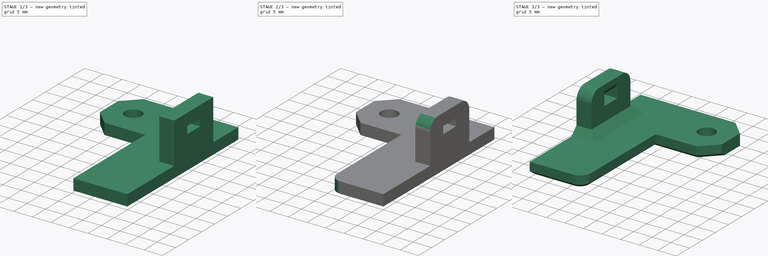
[diagram: build sequence overview — one tinted view per stage of 3, left to right]
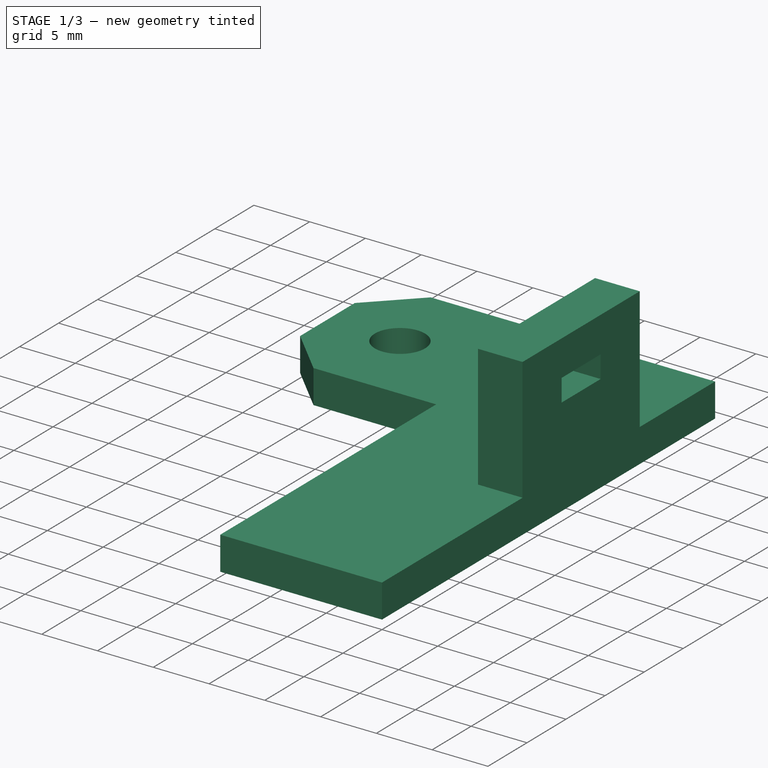
[diagram: stage 1 of 3 — iso view after this stage's code; geometry added in this stage tinted green]
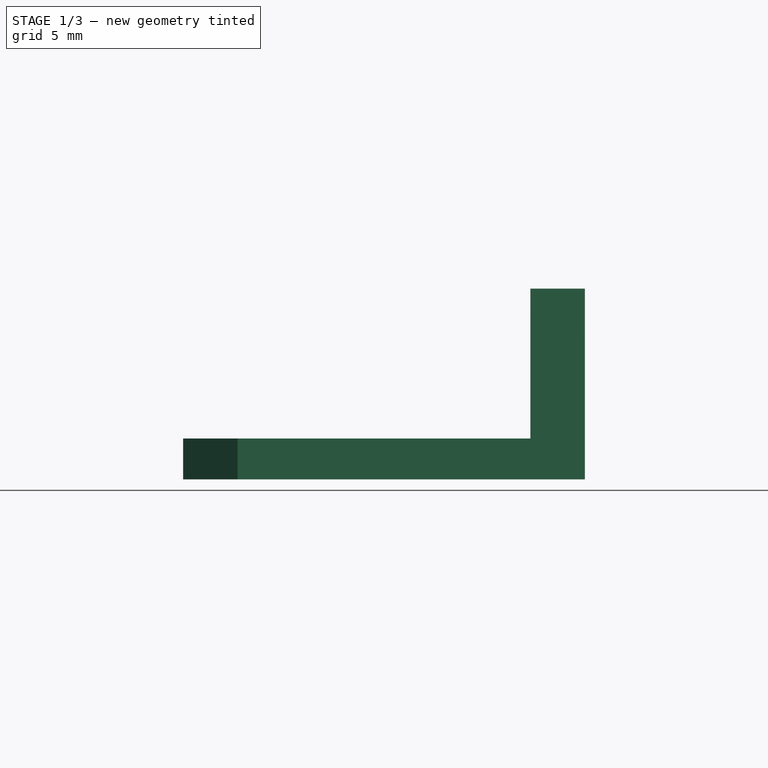
[diagram: stage 1 of 3 — front view after this stage's code; geometry added in this stage tinted green]
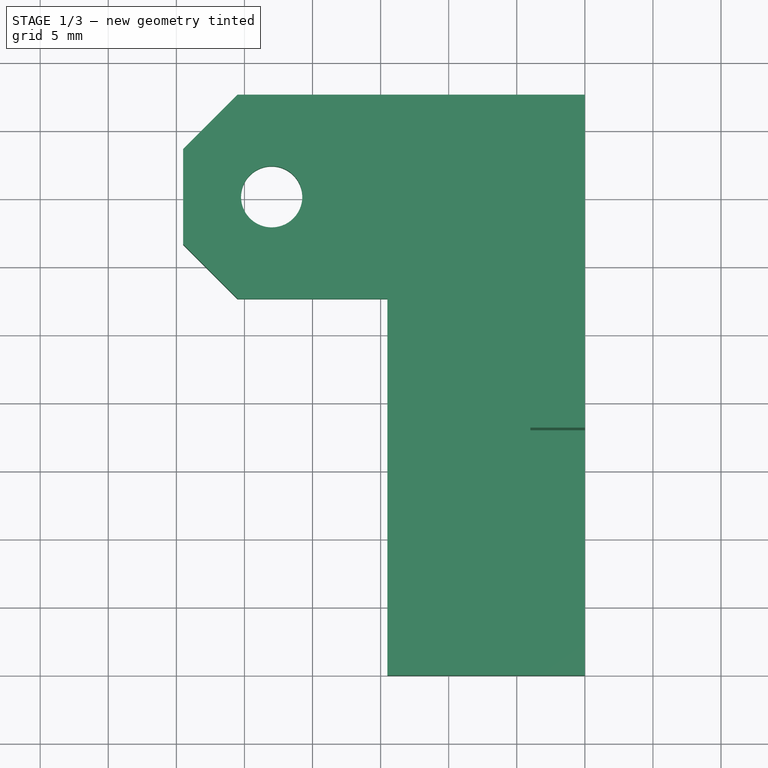
[diagram: stage 1 of 3 — top view after this stage's code; geometry added in this stage tinted green]
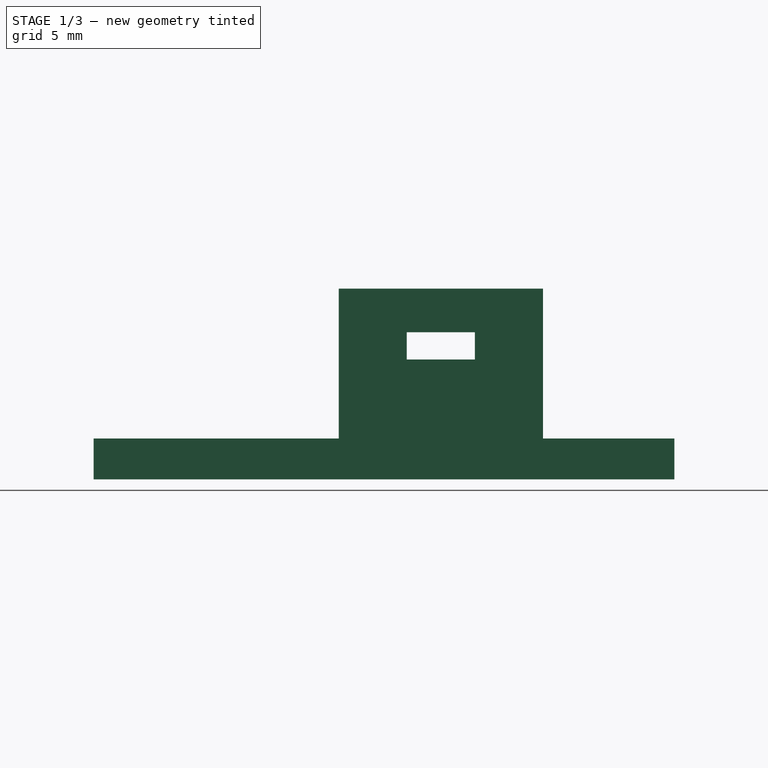
[diagram: stage 1 of 3 — right view after this stage's code; geometry added in this stage tinted green]
FCSTD DOCUMENT  (FreeCAD 0.16R6697 (Git))
Label: CNC Mount Halterung Laserdiode - Links
License: All rights reserved
LicenseURL: http://de.wikipedia.org/wiki/Alle_Rechte_vorbehalten
objects: Sketcher::SketchObject×3, PartDesign::Pad×2, PartDesign::Fillet×2, PartDesign::Chamfer×2, PartDesign::Pocket×1, Part::Mirroring×1
note: 14 computed .brp shape members not serialized (recipe doc carries the construction recipe); baked Part::Feature solids carry a one-line shape summary decoded from their .brp

FEATURE [Sketcher::SketchObject] Sketch
  sketch-geometry (11):
    g0: LineSegment StartX=0 StartY=42.65 StartZ=0 EndX=-25.5 EndY=42.65 EndZ=0
    g1: LineSegment StartX=-25.5 StartY=42.65 StartZ=0 EndX=-29.5 EndY=38.65 EndZ=0
    g2: LineSegment StartX=-29.5 StartY=38.65 StartZ=0 EndX=-29.5 EndY=31.65 EndZ=0
    g3: LineSegment StartX=-29.5 StartY=31.65 StartZ=0 EndX=-25.5 EndY=27.65 EndZ=0
    g4: LineSegment StartX=-25.5 StartY=27.65 StartZ=0 EndX=-14.5 EndY=27.65 EndZ=0
    g5: LineSegment StartX=-14.5 StartY=27.65 StartZ=0 EndX=-14.5 EndY=0 EndZ=0
    g6: LineSegment StartX=-14.5 StartY=0 StartZ=0 EndX=0 EndY=0 EndZ=0
    g7: LineSegment StartX=0 StartY=0 StartZ=0 EndX=0 EndY=42.65 EndZ=0
    g8: LineSegment [constr] StartX=-25.5 StartY=42.65 StartZ=0 EndX=-25.5 EndY=27.65 EndZ=0
    g9: LineSegment [constr] StartX=-29.5 StartY=35.15 StartZ=0 EndX=0 EndY=35.15 EndZ=0
    g10: Circle CenterX=-23 CenterY=35.15 CenterZ=0 NormalX=0 NormalY=0 NormalZ=1 Radius=2.25
  constraints (31):
    c: Horizontal(g0)
    c: Coincident(g0,g1)
    c: Coincident(g1,g2)
    c: Vertical(g2)
    c: Coincident(g2,g3)
    c: Coincident(g3,g4)
    c: Horizontal(g4)
    c: Coincident(g4,g5)
    c: Vertical(g5)
    c: Coincident(g5,g6)
    c: Horizontal(g6)
    c: Coincident(g6,g7)
    c: Coincident(g7,g0)
    c: Vertical(g7)
    c: Coincident(g6,g-1)
    c: DistanceX(g6,g6) = 14.5
    c: DistanceX(g0,g0) = 25.5
    c: DistanceX(g1,g0) = 29.5
    c: DistanceY(g7,g7) = 42.65
    c: Coincident(g8,g0)
    c: Coincident(g8,g3)
    c: Vertical(g8)
    c: Equal(g1,g3)
    c: DistanceY(g-1,g2) = 31.65
    c: DistanceY(g5,g5) = 27.65
    c: PointOnObject(g9,g2)
    c: PointOnObject(g9,g7)
    c: Symmetric(g3,g0,g9)
    c: PointOnObject(g10,g9)
    c: Radius(g10) = 2.25
    c: DistanceX(g10,g9) = 23
FEATURE [PartDesign::Pad] Pad
  Length = 3
  Length2 = 100
  Sketch = -> Sketch
  Type = 0
FEATURE [Sketcher::SketchObject] Sketch001
  ExternalGeometry = -> [Pad]
  Placement = pos=(0,0,3) rot=(0,0,1;0rad)
  Support = -> Pad [Face11]
  sketch-geometry (4):
    g0: LineSegment StartX=-4 StartY=33 StartZ=0 EndX=0 EndY=33 EndZ=0
    g1: LineSegment StartX=0 StartY=33 StartZ=0 EndX=0 EndY=18 EndZ=0
    g2: LineSegment StartX=0 StartY=18 StartZ=0 EndX=-4 EndY=18 EndZ=0
    g3: LineSegment StartX=-4 StartY=18 StartZ=0 EndX=-4 EndY=33 EndZ=0
  constraints (12):
    c: Coincident(g0,g1)
    c: Coincident(g1,g2)
    c: Coincident(g2,g3)
    c: Coincident(g3,g0)
    c: Horizontal(g0)
    c: Horizontal(g2)
    c: Vertical(g1)
    c: Vertical(g3)
    c: PointOnObject(g1,g-2)
    c: DistanceX(g2,g2) = 4
    c: DistanceY(g0,g-3) = 9.65
    c: DistanceY(g-1,g1) = 18
FEATURE [PartDesign::Pad] Pad001
  Length = 11
  Length2 = 100
  Sketch = -> Sketch001
  Type = 0
FEATURE [Sketcher::SketchObject] Sketch002
  ExternalGeometry = -> [Pad001]
  Placement = pos=(0,0,0) rot=(0.57735,0.57735,0.57735;2.0944rad)
  Support = -> Pad001 [Face7]
  sketch-geometry (5):
    g0: LineSegment StartX=23 StartY=10.8 StartZ=0 EndX=28 EndY=10.8 EndZ=0
    g1: LineSegment StartX=28 StartY=10.8 StartZ=0 EndX=28 EndY=8.8 EndZ=0
    g2: LineSegment StartX=28 StartY=8.8 StartZ=0 EndX=23 EndY=8.8 EndZ=0
    g3: LineSegment StartX=23 StartY=8.8 StartZ=0 EndX=23 EndY=10.8 EndZ=0
    g4: LineSegment [constr] StartX=25.5 StartY=14 StartZ=0 EndX=25.5 EndY=0 EndZ=0
  constraints (15):
    c: Coincident(g0,g1)
    c: Coincident(g1,g2)
    c: Coincident(g2,g3)
    c: Coincident(g3,g0)
    c: Horizontal(g0)
    c: Horizontal(g2)
    c: Vertical(g1)
    c: Vertical(g3)
    c: DistanceX(g0,g0) = 5
    c: DistanceY(g1,g1) = 2
    c: DistanceY(g-1,g2) = 8.8
    c: PointOnObject(g4,g-3)
    c: PointOnObject(g4,g-1)
    c: Symmetric(g-3,g-3,g4)
    c: Symmetric(g2,g1,g4)
FEATURE [PartDesign::Pocket] Pocket
  Length = 5
  Sketch = -> Sketch002
  Type = 1
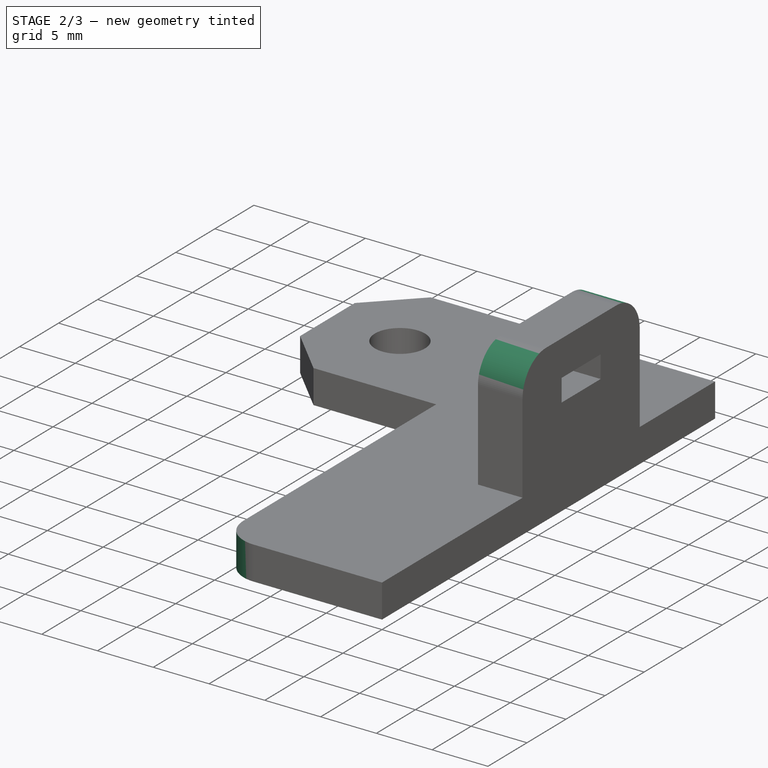
[diagram: stage 2 of 3 — iso view after this stage's code; geometry added in this stage tinted green]
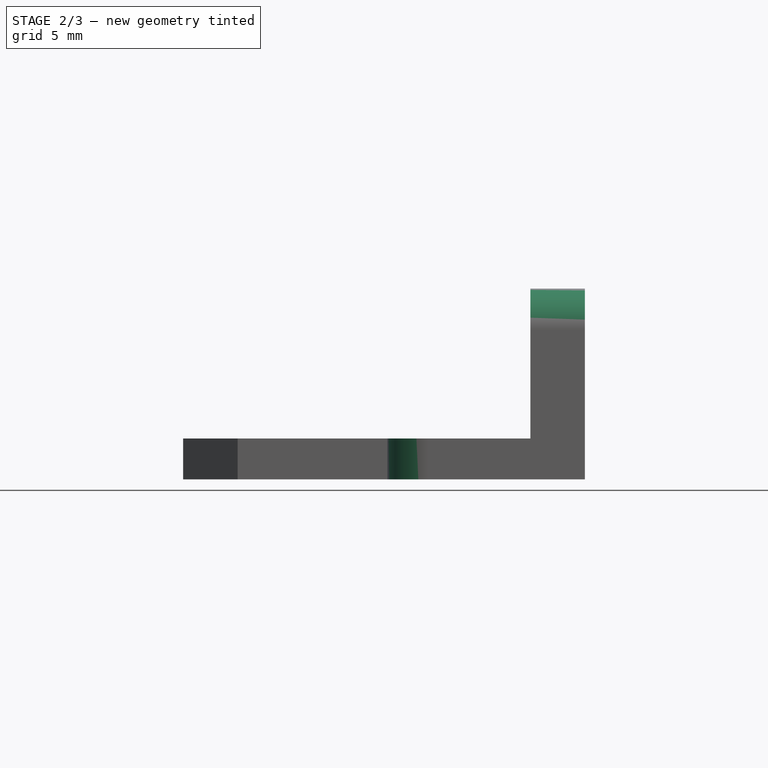
[diagram: stage 2 of 3 — front view after this stage's code; geometry added in this stage tinted green]
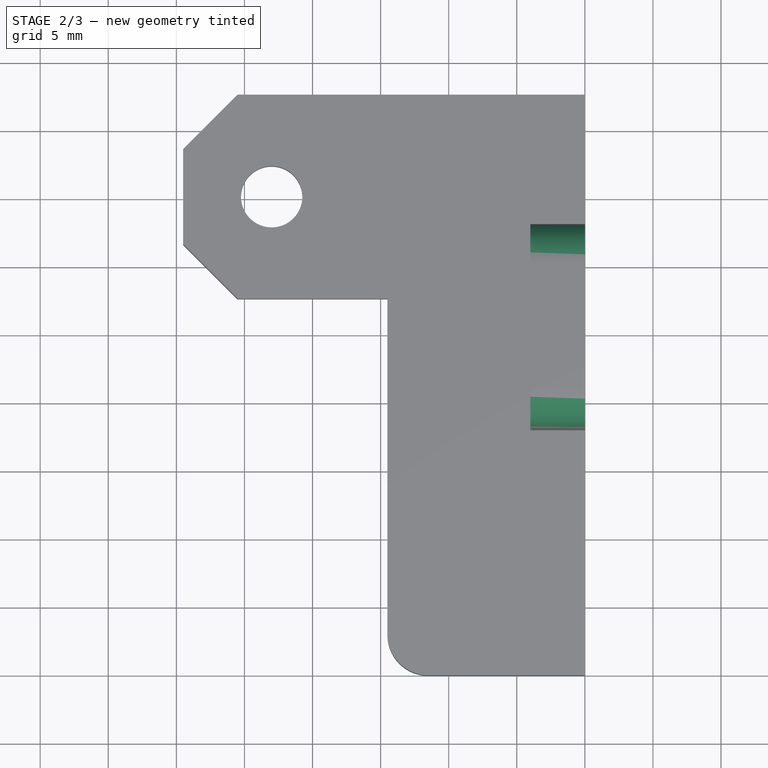
[diagram: stage 2 of 3 — top view after this stage's code; geometry added in this stage tinted green]
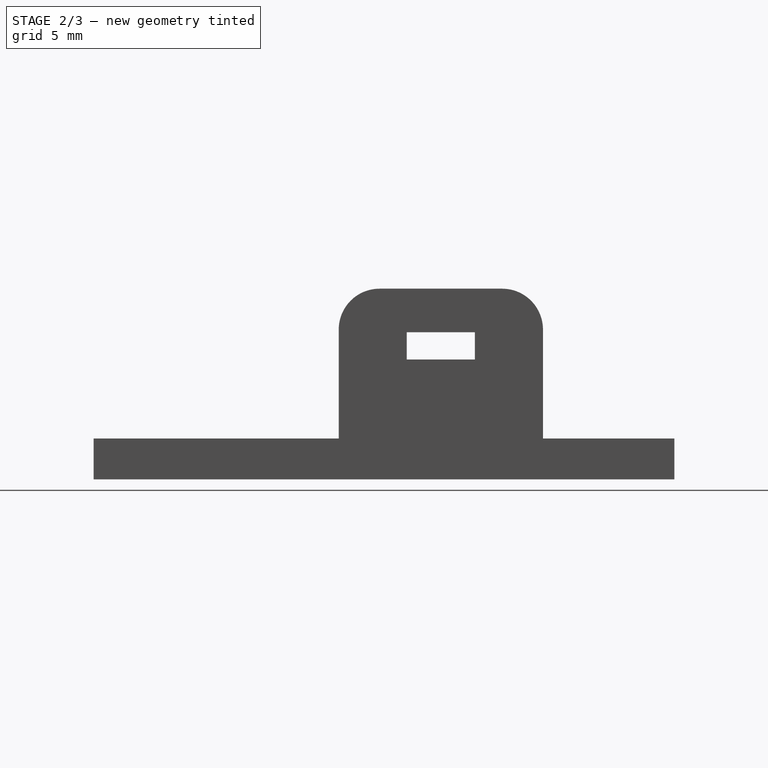
[diagram: stage 2 of 3 — right view after this stage's code; geometry added in this stage tinted green]
FEATURE [PartDesign::Fillet] Fillet
  Base = -> Pocket [Edge40,Edge48,Edge28]
  Radius = 3
FEATURE [PartDesign::Fillet] Fillet001
  Base = -> Fillet [Edge54]
  Radius = 2
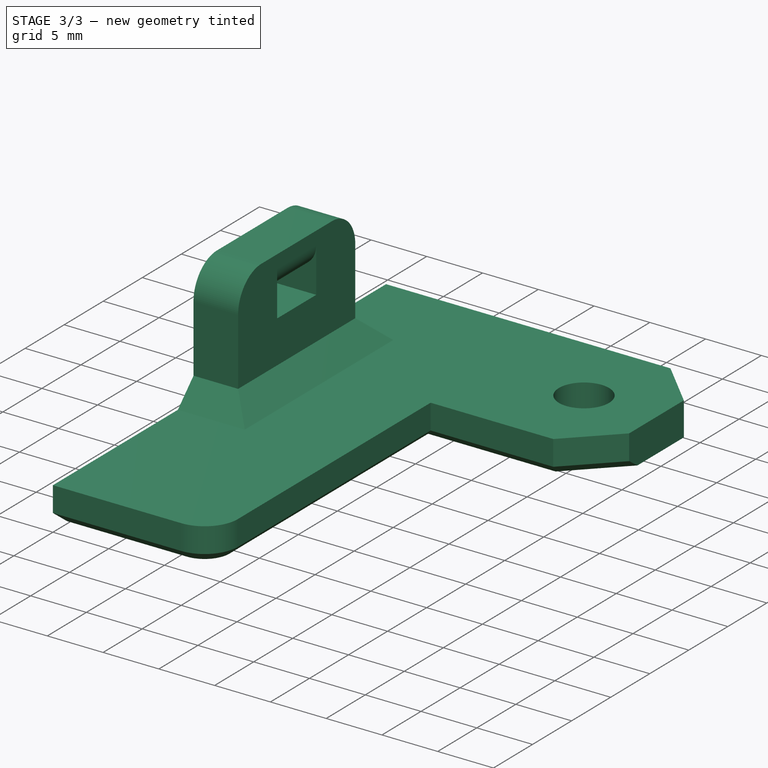
[diagram: stage 3 of 3 — iso view after this stage's code; geometry added in this stage tinted green]
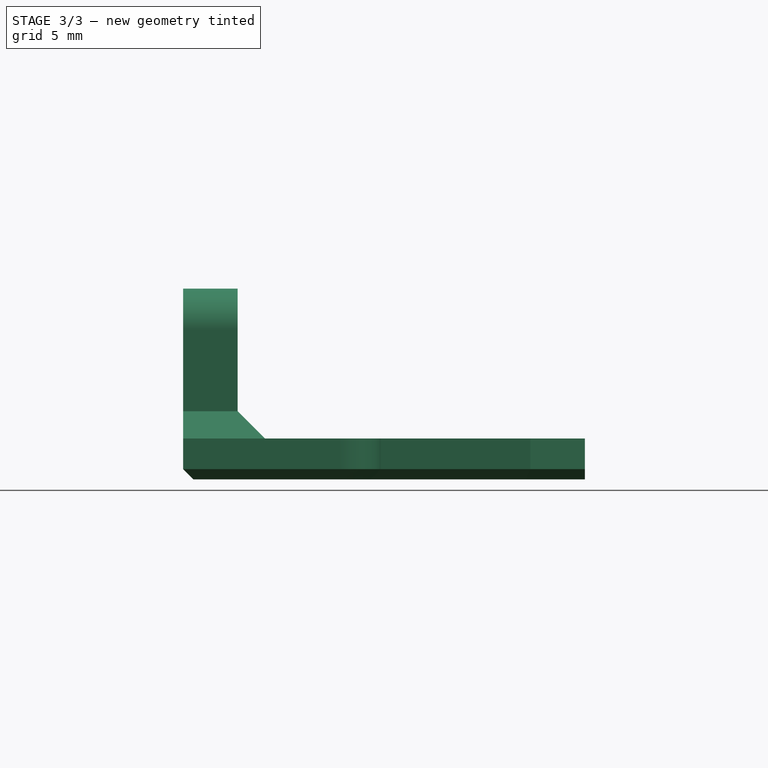
[diagram: stage 3 of 3 — front view after this stage's code; geometry added in this stage tinted green]
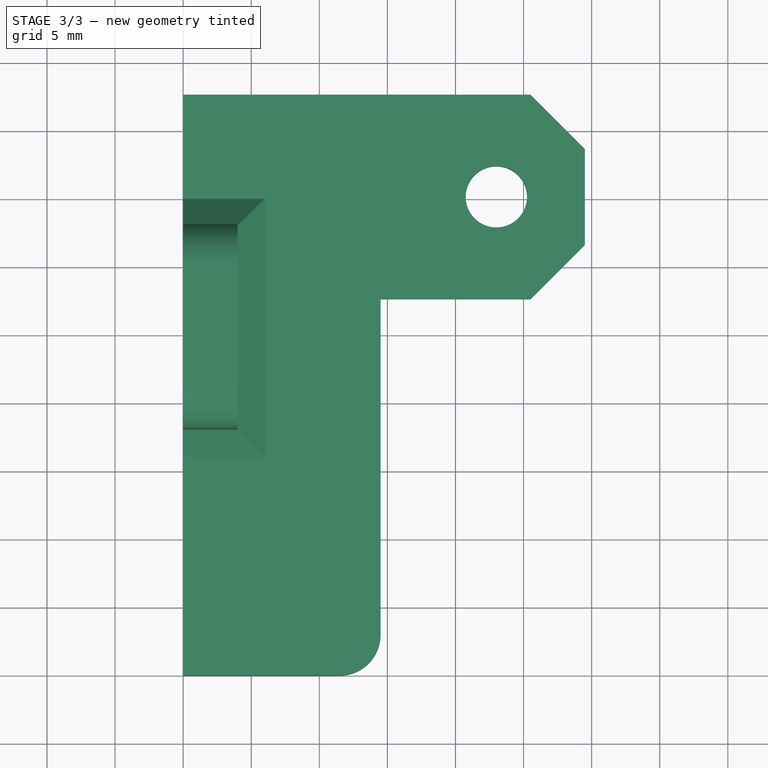
[diagram: stage 3 of 3 — top view after this stage's code; geometry added in this stage tinted green]
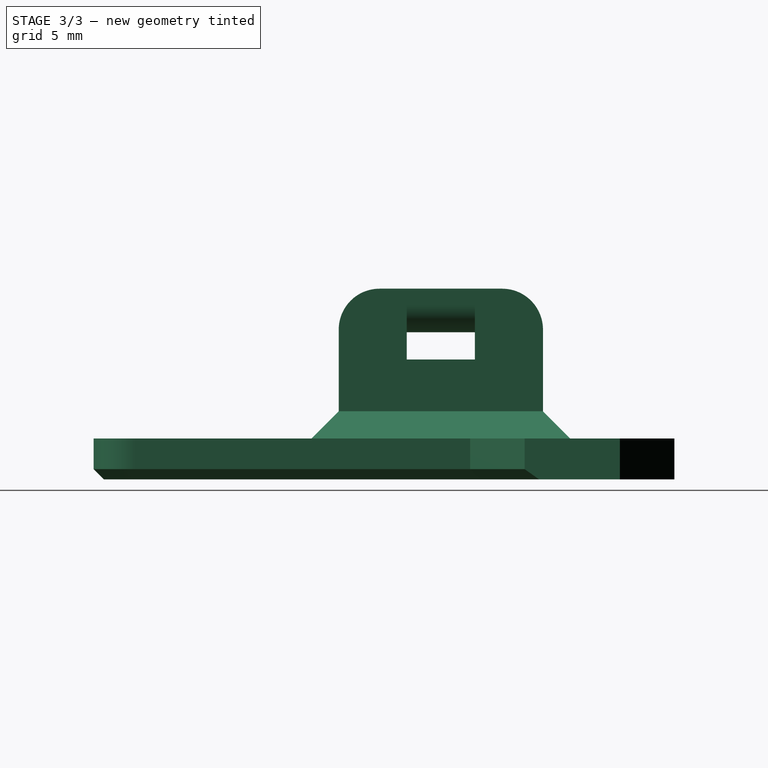
[diagram: stage 3 of 3 — right view after this stage's code; geometry added in this stage tinted green]
FEATURE [PartDesign::Chamfer] Chamfer
  Base = -> Fillet001 [Edge58,Edge54,Edge50,Edge47,Edge53,Edge57,Edge66]
  Size = 0.75
FEATURE [PartDesign::Chamfer] Chamfer001
  Base = -> Chamfer [Edge16,Edge18,Edge20]
  Size = 2
FEATURE [Part::Mirroring] Part__Mirroring  label="Chamfer001 (Mirror #1)"
  Base = (0,0,0)
  Normal = (1,0,0)
  Source = -> Chamfer001
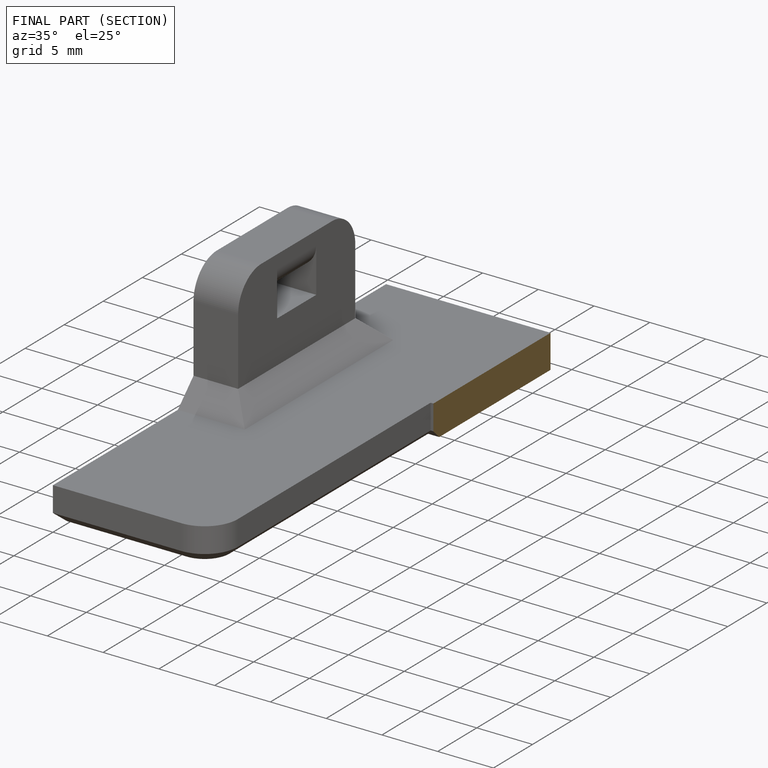
[diagram: finished part — half-section view (interior)]
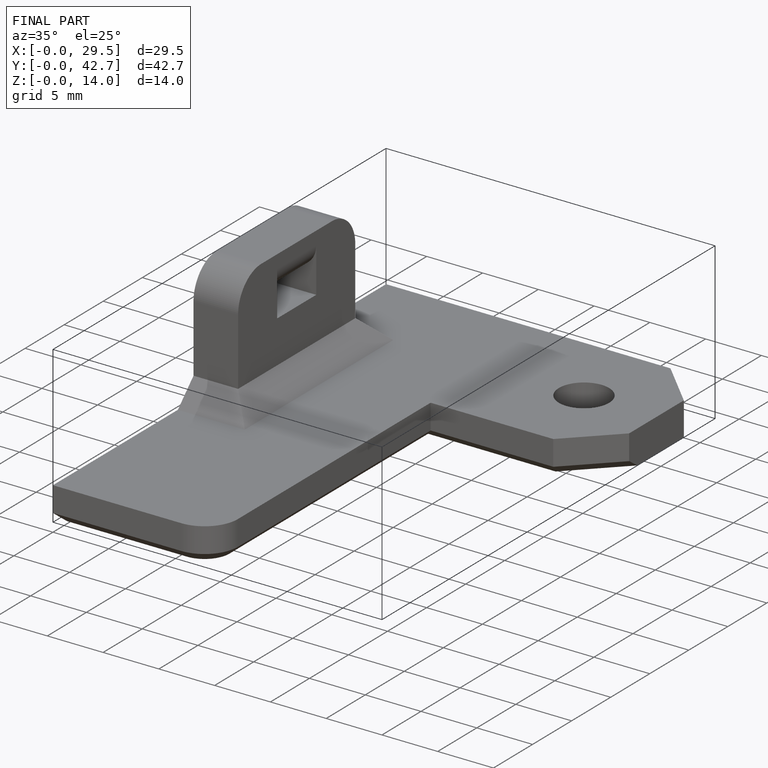
[diagram: finished part — iso view with bounding-box wireframe]
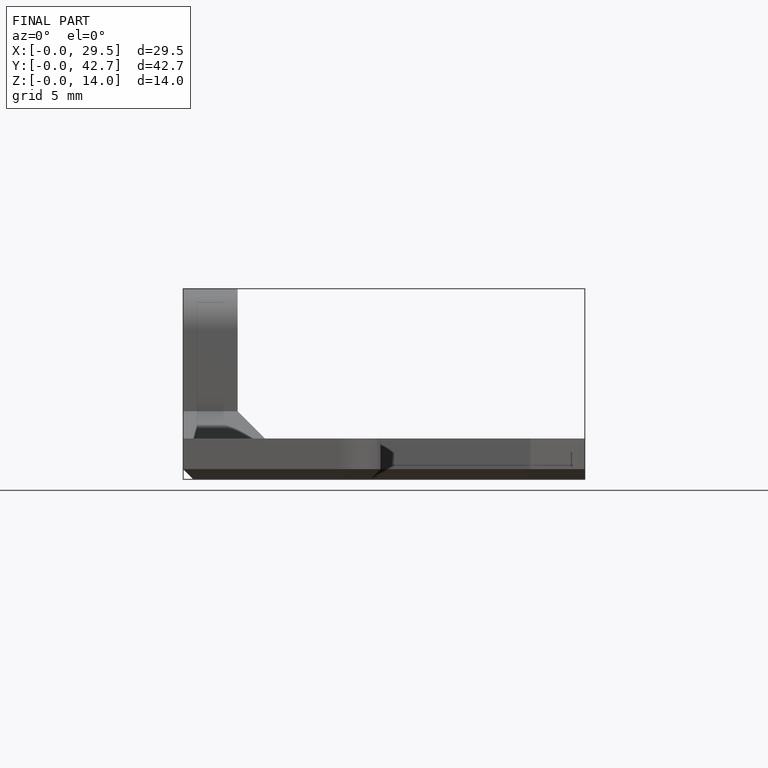
[diagram: finished part — front view with bounding-box wireframe]
